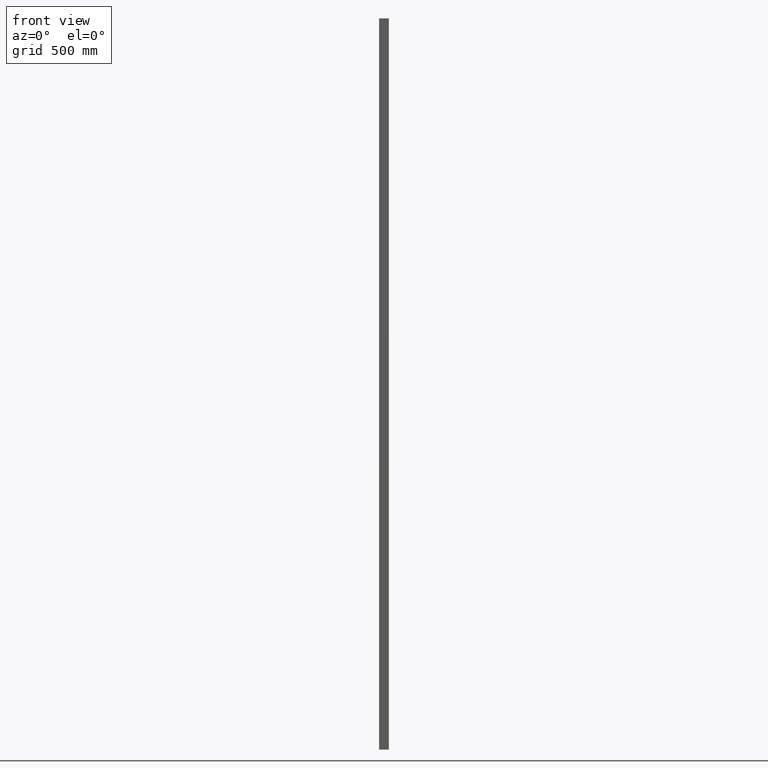
[diagram: clean part render]
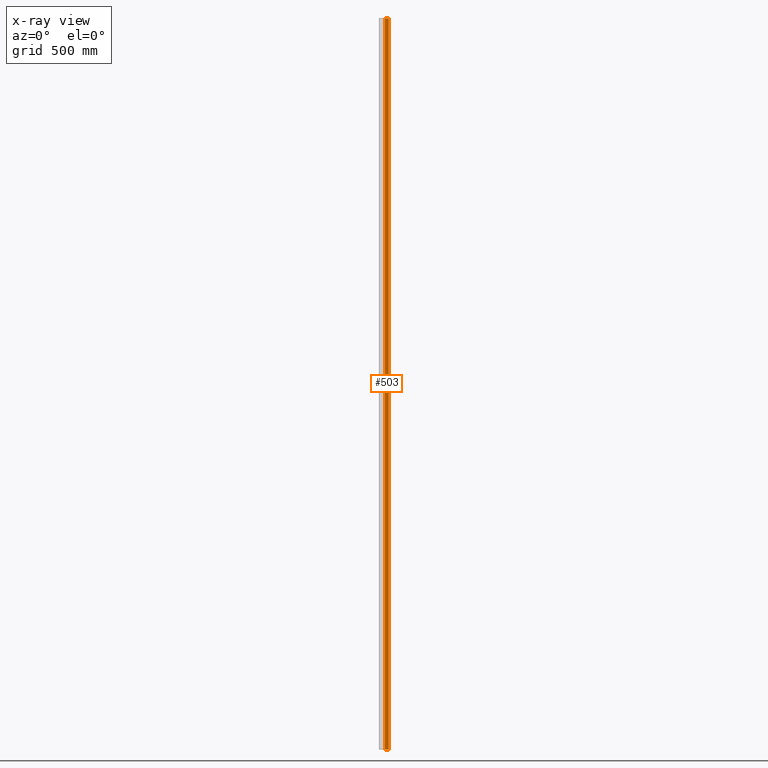
[diagram: x-ray — body ghosted, one internal face saturated and labeled with its STEP entity id]
A machine part, front view, then the same camera in x-ray: the body is ghosted and one INTERNAL B-rep face — a face not visible from any outside direction — is saturated and labeled: STEP entity #503.
In plain terms, the highlighted planar face has unit normal (0, -1, 0).
Its self-contained STEP definition (entity closure, byte-faithful):
#37=FACE_OUTER_BOUND('',#63,.T.);
#63=EDGE_LOOP('',(#367,#368,#369,#370));
#105=LINE('',#773,#169);
#106=LINE('',#776,#170);
#107=LINE('',#778,#171);
#108=LINE('',#779,#172);
#169=VECTOR('',#632,10.);
#170=VECTOR('',#635,10.);
#171=VECTOR('',#636,10.);
#172=VECTOR('',#637,10.);
#227=VERTEX_POINT('',#769);
#228=VERTEX_POINT('',#771);
#229=VERTEX_POINT('',#775);
#230=VERTEX_POINT('',#777);
#285=EDGE_CURVE('',#227,#228,#105,.T.);
#286=EDGE_CURVE('',#227,#229,#106,.T.);
#287=EDGE_CURVE('',#230,#228,#107,.T.);
#288=EDGE_CURVE('',#229,#230,#108,.T.);
#367=ORIENTED_EDGE('',*,*,#286,.F.);
#368=ORIENTED_EDGE('',*,*,#285,.T.);
#369=ORIENTED_EDGE('',*,*,#287,.F.);
#370=ORIENTED_EDGE('',*,*,#288,.F.);
#479=PLANE('',#556);
#503=ADVANCED_FACE('',(#37),#479,.T.);
#556=AXIS2_PLACEMENT_3D('',#774,#633,#634);
#632=DIRECTION('',(0.,0.,1.));
#633=DIRECTION('center_axis',(7.40148683083458E-17,-1.,0.));
#634=DIRECTION('ref_axis',(1.,7.40148683083458E-17,0.));
#635=DIRECTION('',(-1.,-7.40148683083458E-17,0.));
#636=DIRECTION('',(1.,7.40148683083458E-17,0.));
#637=DIRECTION('',(0.,0.,1.));
#769=CARTESIAN_POINT('',(18.9999867118391,7.99999687903501,0.));
#771=CARTESIAN_POINT('',(18.9999867118391,7.99999687903501,3000.));
#773=CARTESIAN_POINT('',(18.9999867118391,7.99999687903501,0.));
#774=CARTESIAN_POINT('Origin',(3.9999867118395,7.99999687903501,0.));
#775=CARTESIAN_POINT('',(3.9999867118395,7.99999687903501,0.));
#776=CARTESIAN_POINT('',(18.9999867118391,7.99999687903501,0.));
#777=CARTESIAN_POINT('',(3.9999867118395,7.99999687903501,3000.));
#778=CARTESIAN_POINT('',(18.9999867118391,7.99999687903501,3000.));
#779=CARTESIAN_POINT('',(3.9999867118395,7.99999687903501,0.));